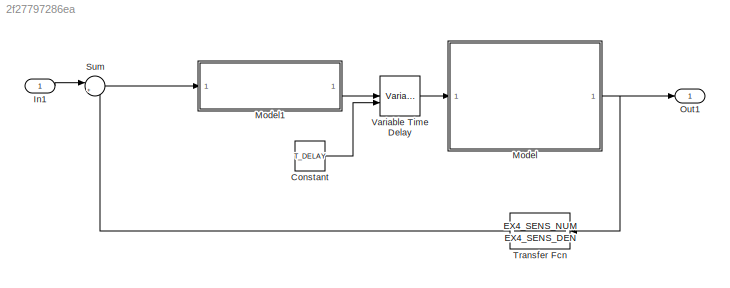
MODEL slx_2f27797286ea
KIND model
CONFIG AbsTol = auto
CONFIG EnableMultiTasking = off
CONFIG FixedStep = auto
CONFIG MaxStep = auto
CONFIG MinStep = auto
CONFIG RelTol = 1e-3
CONFIG SampleTimeConstraint = Unconstrained
CONFIG SolverName = VariableStepAuto
CONFIG StartTime = t(1)
CONFIG StopTime = t(end)
BLOCK [Constant] Constant
  Value = T_DELAY
BLOCK [Inport] In1
BLOCK [ModelReference] Model
  ModelNameDialog = transferfunction12A_harness.slx
  ModelReferenceVersion = 1.3
  ShowModelTerminatePort = on
BLOCK [ModelReference] Model1
  ModelNameDialog = Controller.slx
  ModelReferenceVersion = 1.7
BLOCK [Outport] Out1
BLOCK [Sum] Sum
  Inputs = |+-
BLOCK [TransferFcn] Transfer Fcn
  Denominator = EX4_SENS_DEN
  NameLocation = top
  Numerator = EX4_SENS_NUM
BLOCK [VariableTransportDelay] Variable Time Delay
  MaximumDelay = 10
  ZeroDelay = on
LINE Constant:1 -> Variable Time Delay:2
LINE In1:1 -> Sum:1
LINE Model1:1 -> Variable Time Delay:1
NET Model:1 -> Out1:1, Transfer Fcn:1
LINE Sum:1 -> Model1:1
LINE Transfer Fcn:1 -> Sum:2
LINE Variable Time Delay:1 -> Model:1
note: NET lines group one-source signal fan-out (src -> all destinations, sorted); 1:1 wires keep LINE
